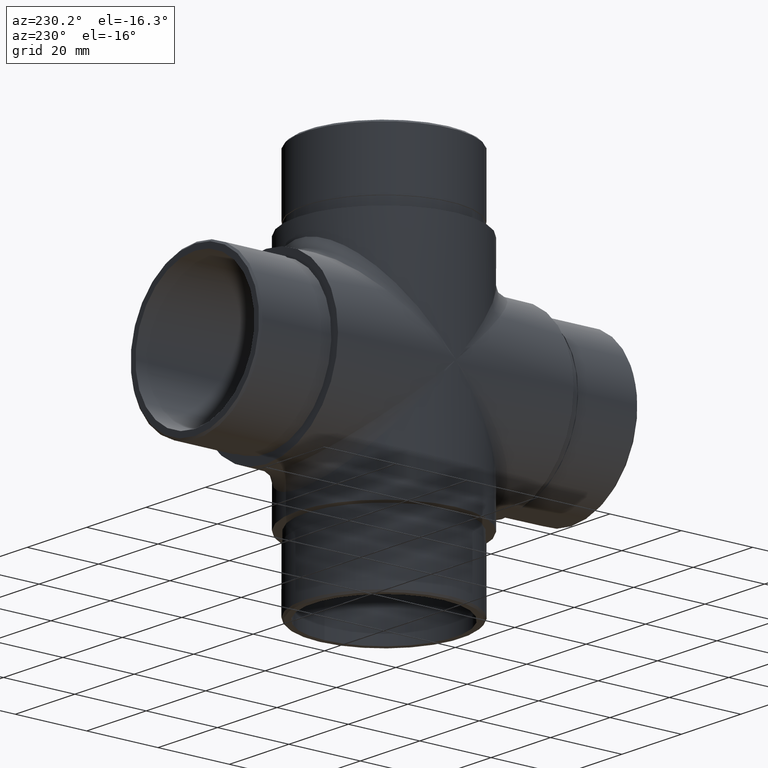
[diagram: clean part render]
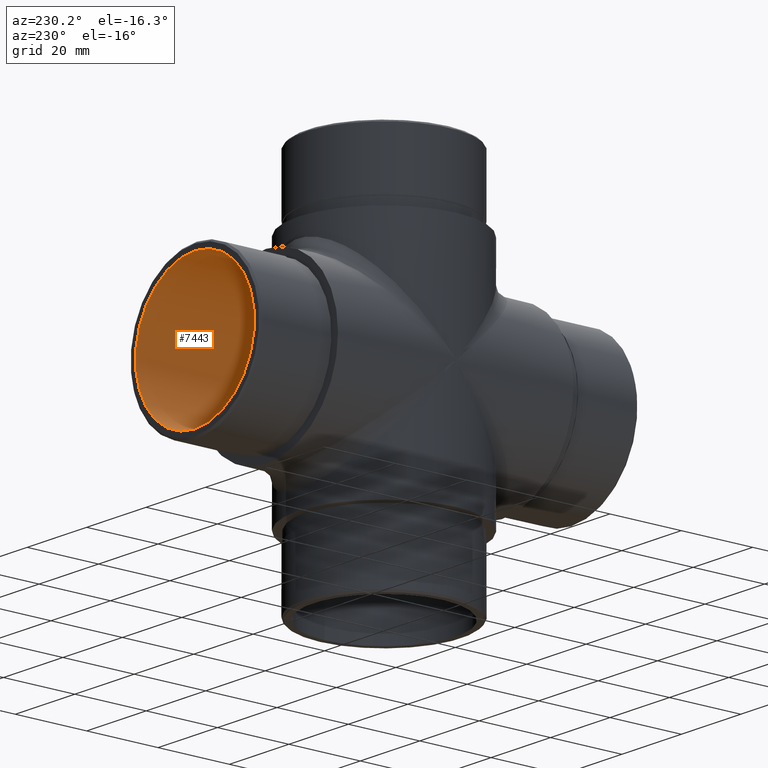
[diagram: same view with one face highlighted and labeled with its STEP entity id]
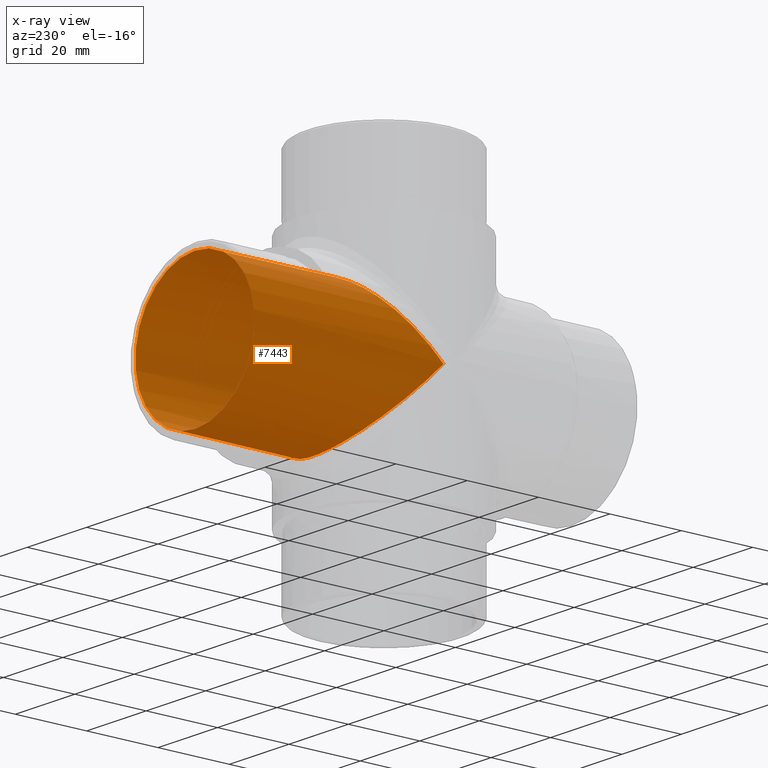
[diagram: x-ray of the same camera — body ghosted, the highlighted face saturated]
A machine part, auxiliary view. The second image highlights one B-rep face of the part: STEP entity #7443.
The next image is the same camera in x-ray: the body ghosted, the highlighted face saturated — about 0% of this face is hidden behind the body in this view.
In plain terms, the highlighted cylindrical surface (bore or boss wall) has radius 20 mm, axis along (-0, 1, -0).
Its self-contained STEP definition (entity closure, byte-faithful):
#710 = CARTESIAN_POINT ( 'NONE',  ( -20.00000000000000400, 39.99999999999997900, -39.99999999999997900 ) ) ;
#726 = CARTESIAN_POINT ( 'NONE',  ( -20.00000000000000000, 0.0000000000000000000, 0.0000000000000000000 ) ) ;
#1648 = CARTESIAN_POINT ( 'NONE',  ( 20.00000000000000000, 0.0000000000000000000, 0.0000000000000000000 ) ) ;
#1691 = CARTESIAN_POINT ( 'NONE',  ( -20.00000000000000000, 0.0000000000000000000, 0.0000000000000000000 ) ) ;
#1876 = AXIS2_PLACEMENT_3D ( 'NONE', #8133, #8175, #5129 ) ;
#2189 = EDGE_LOOP ( 'NONE', ( #5408 ) ) ;
#2415 = AXIS2_PLACEMENT_3D ( 'NONE', #6731, #7820, #12607 ) ;
#2419 = ORIENTED_EDGE ( 'NONE', *, *, #8958, .T. ) ;
#2973 = VERTEX_POINT ( 'NONE', #9909 ) ;
#4041 = CARTESIAN_POINT ( 'NONE',  ( 0.0000000000000000000, 53.00000000000000700, 20.00000000000000000 ) ) ;
#4079 = ORIENTED_EDGE ( 'NONE', *, *, #10583, .T. ) ;
#4687 =( BOUNDED_CURVE ( )  B_SPLINE_CURVE ( 3, ( #1691, #710, #6507, #1648 ),
 .UNSPECIFIED., .F., .F. ) 
 B_SPLINE_CURVE_WITH_KNOTS ( ( 4, 4 ),
 ( 4.712388980384689700, 7.853981633974482800 ),
 .UNSPECIFIED. ) 
 CURVE ( )  GEOMETRIC_REPRESENTATION_ITEM ( )  RATIONAL_B_SPLINE_CURVE ( ( 1.000000000000000000, 0.3333333333333333700, 0.3333333333333333700, 1.000000000000000000 ) ) 
 REPRESENTATION_ITEM ( '' )  );
#5129 = DIRECTION ( 'NONE',  ( 0.0000000000000000000, 0.0000000000000000000, 1.000000000000000000 ) ) ;
#5408 = ORIENTED_EDGE ( 'NONE', *, *, #9666, .T. ) ;
#6507 = CARTESIAN_POINT ( 'NONE',  ( 19.99999999999999300, 39.99999999999998600, -39.99999999999998600 ) ) ;
#6662 = CYLINDRICAL_SURFACE ( 'NONE', #2415, 20.00000000000000000 ) ;
#6731 = CARTESIAN_POINT ( 'NONE',  ( 0.0000000000000000000, -33.00000000000000000, 0.0000000000000000000 ) ) ;
#7443 = ADVANCED_FACE ( 'NONE', ( #9291, #7587 ), #6662, .F. ) ;
#7497 =( BOUNDED_CURVE ( )  B_SPLINE_CURVE ( 3, ( #9462, #9498, #12313, #726 ),
 .UNSPECIFIED., .F., .F. ) 
 B_SPLINE_CURVE_WITH_KNOTS ( ( 4, 4 ),
 ( 4.712388980384689700, 7.853981633974482800 ),
 .UNSPECIFIED. ) 
 CURVE ( )  GEOMETRIC_REPRESENTATION_ITEM ( )  RATIONAL_B_SPLINE_CURVE ( ( 1.000000000000000000, 0.3333333333333333700, 0.3333333333333333700, 1.000000000000000000 ) ) 
 REPRESENTATION_ITEM ( '' )  );
#7587 = FACE_OUTER_BOUND ( 'NONE', #2189, .T. ) ;
#7820 = DIRECTION ( 'NONE',  ( -0.0000000000000000000, 1.000000000000000000, -0.0000000000000000000 ) ) ;
#7827 = VERTEX_POINT ( 'NONE', #4041 ) ;
#8133 = CARTESIAN_POINT ( 'NONE',  ( 0.0000000000000000000, 53.00000000000000700, 0.0000000000000000000 ) ) ;
#8175 = DIRECTION ( 'NONE',  ( 0.0000000000000000000, 1.000000000000000000, 0.0000000000000000000 ) ) ;
#8648 = CIRCLE ( 'NONE', #1876, 20.00000000000000000 ) ;
#8958 = EDGE_CURVE ( 'NONE', #2973, #12497, #7497, .T. ) ;
#9291 = FACE_OUTER_BOUND ( 'NONE', #10743, .T. ) ;
#9462 = CARTESIAN_POINT ( 'NONE',  ( 20.00000000000000000, 0.0000000000000000000, 0.0000000000000000000 ) ) ;
#9498 = CARTESIAN_POINT ( 'NONE',  ( 20.00000000000000400, 39.99999999999997900, 39.99999999999997900 ) ) ;
#9649 = CARTESIAN_POINT ( 'NONE',  ( -20.00000000000000000, 0.0000000000000000000, 0.0000000000000000000 ) ) ;
#9666 = EDGE_CURVE ( 'NONE', #7827, #7827, #8648, .T. ) ;
#9909 = CARTESIAN_POINT ( 'NONE',  ( 20.00000000000000000, 0.0000000000000000000, 0.0000000000000000000 ) ) ;
#10583 = EDGE_CURVE ( 'NONE', #12497, #2973, #4687, .T. ) ;
#10743 = EDGE_LOOP ( 'NONE', ( #2419, #4079 ) ) ;
#12313 = CARTESIAN_POINT ( 'NONE',  ( -19.99999999999999300, 39.99999999999998600, 39.99999999999998600 ) ) ;
#12497 = VERTEX_POINT ( 'NONE', #9649 ) ;
#12607 = DIRECTION ( 'NONE',  ( 0.0000000000000000000, 0.0000000000000000000, 1.000000000000000000 ) ) ;